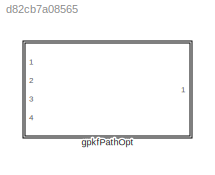
MODEL slx_d82cb7a08565
KIND library
CONFIG AbsTol = auto
CONFIG EnableMultiTasking = off
CONFIG FixedStep = auto
CONFIG MaxStep = auto
CONFIG MinStep = auto
CONFIG RelTol = 1e-3
CONFIG SampleTimeConstraint = Unconstrained
CONFIG SolverName = VariableStepAuto
CONFIG StartTime = 0.0
CONFIG StopTime = 10.0
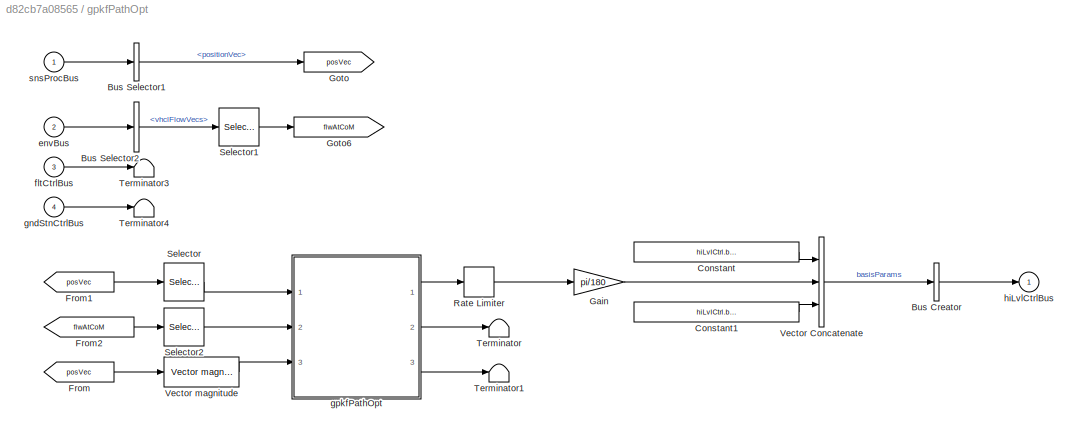
BLOCK [SubSystem] gpkfPathOpt
  InitFcn = initializeBussesFromBlock(gcb)
  LoadFcn = initializeBussesFromBlock(gcb)
  Ports = [4, 1]
  RequestExecContextInheritance = off
  StartFcn = initializeBussesFromBlock(gcb)
BLOCK [BusCreator] gpkfPathOpt/Bus Creator
  DisplayOption = bar
  InheritFromInputs = on
  Inputs = 1
  OutDataTypeStr = Bus: hiLvlCtrlBus
  Ports = [1, 1]
BLOCK [BusSelector] gpkfPathOpt/Bus Selector1
  OutputSignals = positionVec
  Ports = [1, 1]
BLOCK [BusSelector] gpkfPathOpt/Bus Selector2
  OutputSignals = vhclFlowVecs
  Ports = [1, 1]
BLOCK [Constant] gpkfPathOpt/Constant
  Value = hiLvlCtrl.basisParams.Value(1:2)
BLOCK [Constant] gpkfPathOpt/Constant1
  Value = hiLvlCtrl.basisParams.Value(4:5)
BLOCK [From] gpkfPathOpt/From
  GotoTag = posVec
BLOCK [From] gpkfPathOpt/From1
  GotoTag = posVec
BLOCK [From] gpkfPathOpt/From2
  GotoTag = flwAtCoM
BLOCK [Gain] gpkfPathOpt/Gain
  Gain = pi/180
BLOCK [Goto] gpkfPathOpt/Goto
  GotoTag = posVec
BLOCK [Goto] gpkfPathOpt/Goto6
  GotoTag = flwAtCoM
BLOCK [RateLimiter] gpkfPathOpt/Rate Limiter
  FallingSlewLimit = -hiLvlCtrl.rateLimit
  RisingSlewLimit = hiLvlCtrl.rateLimit
  SampleTimeMode = inherited
BLOCK [Selector] gpkfPathOpt/Selector
  IndexOptions = Index vector (dialog),Index vector (dialog)
  Indices = 3,1
  InputPortWidth = 3
  NumberOfDimensions = 2
  OutputSizes = 1,1
  Ports = [1, 1]
BLOCK [Selector] gpkfPathOpt/Selector1
  IndexOptions = Select all,Index vector (dialog)
  Indices = [1 3],5
  InputPortWidth = 3
  NumberOfDimensions = 2
  OutputSizes = 1,1
  Ports = [1, 1]
BLOCK [Selector] gpkfPathOpt/Selector2
  IndexOptions = Index vector (dialog),Index vector (dialog)
  Indices = 1,1
  InputPortWidth = 3
  NumberOfDimensions = 2
  OutputSizes = 1,1
  Ports = [1, 1]
BLOCK [Terminator] gpkfPathOpt/Terminator
BLOCK [Terminator] gpkfPathOpt/Terminator1
BLOCK [Terminator] gpkfPathOpt/Terminator3
BLOCK [Terminator] gpkfPathOpt/Terminator4
BLOCK [Concatenate] gpkfPathOpt/Vector Concatenate
  NumInputs = 3
  Ports = [3, 1]
BLOCK [Reference] gpkfPathOpt/Vector magnitude  REF=calculate_vector_magnitude/Vector magnitude  (lib defined in slx_4d1e83c0815f)
  Ports = [1, 1]
  SourceBlock = calculate_vector_magnitude/Vector magnitude
BLOCK [Inport] gpkfPathOpt/envBus
  Port = 2
BLOCK [Inport] gpkfPathOpt/fltCtrlBus
  Port = 3
BLOCK [Inport] gpkfPathOpt/gndStnCtrlBus
  Port = 4
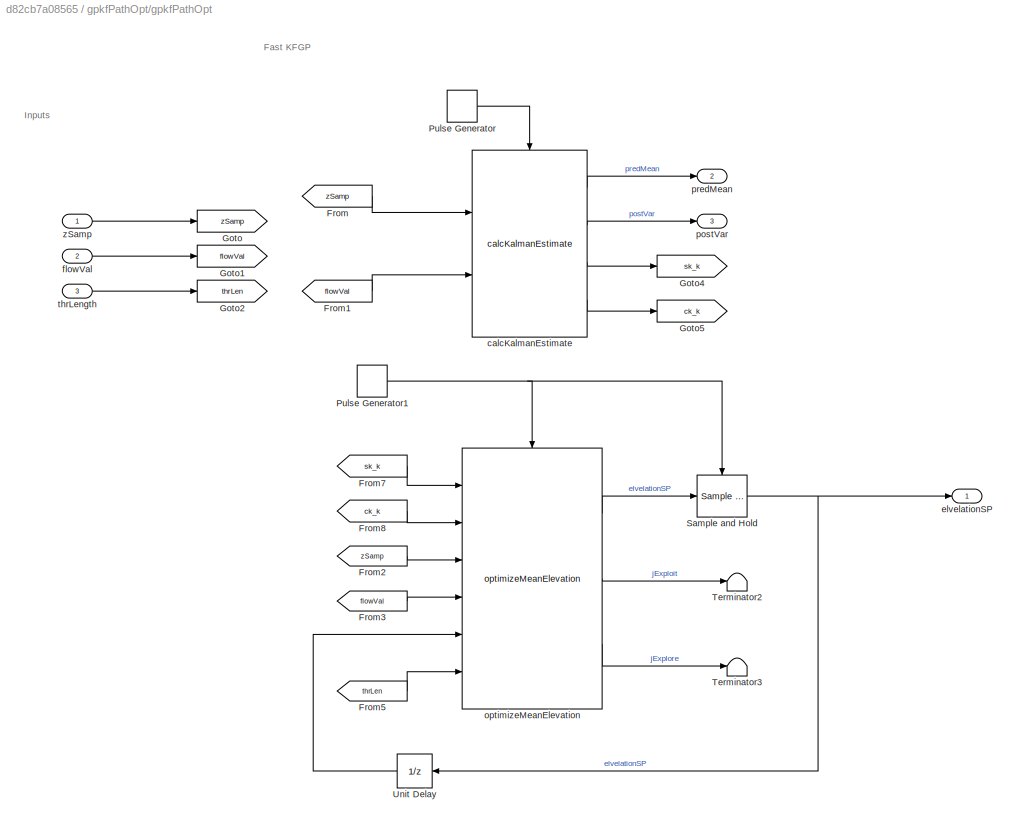
BLOCK [SubSystem] gpkfPathOpt/gpkfPathOpt
  Ports = [3, 3]
  RequestExecContextInheritance = off
BLOCK [From] gpkfPathOpt/gpkfPathOpt/From
  GotoTag = zSamp
BLOCK [From] gpkfPathOpt/gpkfPathOpt/From1
  GotoTag = flowVal
BLOCK [From] gpkfPathOpt/gpkfPathOpt/From2
  GotoTag = zSamp
BLOCK [From] gpkfPathOpt/gpkfPathOpt/From3
  GotoTag = flowVal
BLOCK [From] gpkfPathOpt/gpkfPathOpt/From5
  GotoTag = thrLen
BLOCK [From] gpkfPathOpt/gpkfPathOpt/From7
  GotoTag = sk_k
BLOCK [From] gpkfPathOpt/gpkfPathOpt/From8
  GotoTag = ck_k
BLOCK [Goto] gpkfPathOpt/gpkfPathOpt/Goto
  GotoTag = zSamp
BLOCK [Goto] gpkfPathOpt/gpkfPathOpt/Goto1
  GotoTag = flowVal
BLOCK [Goto] gpkfPathOpt/gpkfPathOpt/Goto2
  GotoTag = thrLen
BLOCK [Goto] gpkfPathOpt/gpkfPathOpt/Goto4
  GotoTag = sk_k
BLOCK [Goto] gpkfPathOpt/gpkfPathOpt/Goto5
  GotoTag = ck_k
BLOCK [DiscretePulseGenerator] gpkfPathOpt/gpkfPathOpt/Pulse Generator
  Period = hiLvlCtrl.kfgpTimeStep*60
  Ports = [0, 1]
  PulseType = Time based
BLOCK [DiscretePulseGenerator] gpkfPathOpt/gpkfPathOpt/Pulse Generator1
  Period = hiLvlCtrl.mpckfgpTimeStep*60
  PhaseDelay = hiLvlCtrl.mpckfgpTimeStep*60
  Ports = [0, 1]
  PulseType = Time based
BLOCK [Reference] gpkfPathOpt/gpkfPathOpt/Sample and Hold  REF=dspsigops/Sample
and Hold
  Ports = [1, 1, 0, 1]
  SourceBlock = dspsigops/Sample\nand Hold
  SourceProductBaseCode = DS
  SourceType = Sample and Hold
BLOCK [Terminator] gpkfPathOpt/gpkfPathOpt/Terminator2
BLOCK [Terminator] gpkfPathOpt/gpkfPathOpt/Terminator3
BLOCK [UnitDelay] gpkfPathOpt/gpkfPathOpt/Unit Delay
  HasFrameUpgradeWarning = on
  InitialCondition = hiLvlCtrl.initVals
  NameLocation = top
  SampleTime = -1
BLOCK [Reference] gpkfPathOpt/gpkfPathOpt/calcKalmanEstimate  REF=calcKalmanEstimate_ul/calcKalmanEstimate
  Ports = [2, 4, 0, 1]
  SourceBlock = calcKalmanEstimate_ul/calcKalmanEstimate
BLOCK [Outport] gpkfPathOpt/gpkfPathOpt/elvelationSP
BLOCK [Inport] gpkfPathOpt/gpkfPathOpt/flowVal
  Port = 2
BLOCK [Reference] gpkfPathOpt/gpkfPathOpt/optimizeMeanElevation  REF=optimizeTrajectory_ul/optimizeMeanElevation
  Ports = [6, 3, 0, 1]
  SourceBlock = optimizeTrajectory_ul/optimizeMeanElevation
BLOCK [Outport] gpkfPathOpt/gpkfPathOpt/postVar
  Port = 3
BLOCK [Outport] gpkfPathOpt/gpkfPathOpt/predMean
  Port = 2
BLOCK [Inport] gpkfPathOpt/gpkfPathOpt/thrLength
  Port = 3
BLOCK [Inport] gpkfPathOpt/gpkfPathOpt/zSamp
BLOCK [Outport] gpkfPathOpt/hiLvlCtrlBus
BLOCK [Inport] gpkfPathOpt/snsProcBus
ANNOTATION gpkfPathOpt/gpkfPathOpt: Fast KFGP
ANNOTATION gpkfPathOpt/gpkfPathOpt: Inputs
LINE gpkfPathOpt/Bus Creator:1 -> gpkfPathOpt/hiLvlCtrlBus:1
LINE gpkfPathOpt/Bus Selector1:1 -> gpkfPathOpt/Goto:1
LINE gpkfPathOpt/Bus Selector2:1 -> gpkfPathOpt/Selector1:1
LINE gpkfPathOpt/Constant1:1 -> gpkfPathOpt/Vector Concatenate:3
LINE gpkfPathOpt/Constant:1 -> gpkfPathOpt/Vector Concatenate:1
LINE gpkfPathOpt/From1:1 -> gpkfPathOpt/Selector:1
LINE gpkfPathOpt/From2:1 -> gpkfPathOpt/Selector2:1
LINE gpkfPathOpt/From:1 -> gpkfPathOpt/Vector magnitude:1
LINE gpkfPathOpt/Gain:1 -> gpkfPathOpt/Vector Concatenate:2
LINE gpkfPathOpt/Rate Limiter:1 -> gpkfPathOpt/Gain:1
LINE gpkfPathOpt/Selector1:1 -> gpkfPathOpt/Goto6:1
LINE gpkfPathOpt/Selector2:1 -> gpkfPathOpt/gpkfPathOpt:2
LINE gpkfPathOpt/Selector:1 -> gpkfPathOpt/gpkfPathOpt:1
LINE gpkfPathOpt/Vector Concatenate:1 -> gpkfPathOpt/Bus Creator:1
LINE gpkfPathOpt/Vector magnitude:1 -> gpkfPathOpt/gpkfPathOpt:3
LINE gpkfPathOpt/envBus:1 -> gpkfPathOpt/Bus Selector2:1
LINE gpkfPathOpt/fltCtrlBus:1 -> gpkfPathOpt/Terminator3:1
LINE gpkfPathOpt/gndStnCtrlBus:1 -> gpkfPathOpt/Terminator4:1
LINE gpkfPathOpt/gpkfPathOpt/From1:1 -> gpkfPathOpt/gpkfPathOpt/calcKalmanEstimate:2
LINE gpkfPathOpt/gpkfPathOpt/From2:1 -> gpkfPathOpt/gpkfPathOpt/optimizeMeanElevation:3
LINE gpkfPathOpt/gpkfPathOpt/From3:1 -> gpkfPathOpt/gpkfPathOpt/optimizeMeanElevation:4
LINE gpkfPathOpt/gpkfPathOpt/From5:1 -> gpkfPathOpt/gpkfPathOpt/optimizeMeanElevation:6
LINE gpkfPathOpt/gpkfPathOpt/From7:1 -> gpkfPathOpt/gpkfPathOpt/optimizeMeanElevation:1
LINE gpkfPathOpt/gpkfPathOpt/From8:1 -> gpkfPathOpt/gpkfPathOpt/optimizeMeanElevation:2
LINE gpkfPathOpt/gpkfPathOpt/From:1 -> gpkfPathOpt/gpkfPathOpt/calcKalmanEstimate:1
NET gpkfPathOpt/gpkfPathOpt/Pulse Generator1:1 -> gpkfPathOpt/gpkfPathOpt/Sample and Hold:trigger, gpkfPathOpt/gpkfPathOpt/optimizeMeanElevation:trigger
LINE gpkfPathOpt/gpkfPathOpt/Pulse Generator:1 -> gpkfPathOpt/gpkfPathOpt/calcKalmanEstimate:trigger
NET gpkfPathOpt/gpkfPathOpt/Sample and Hold:1 -> gpkfPathOpt/gpkfPathOpt/Unit Delay:1, gpkfPathOpt/gpkfPathOpt/elvelationSP:1
LINE gpkfPathOpt/gpkfPathOpt/Unit Delay:1 -> gpkfPathOpt/gpkfPathOpt/optimizeMeanElevation:5
LINE gpkfPathOpt/gpkfPathOpt/calcKalmanEstimate:1 -> gpkfPathOpt/gpkfPathOpt/predMean:1
LINE gpkfPathOpt/gpkfPathOpt/calcKalmanEstimate:2 -> gpkfPathOpt/gpkfPathOpt/postVar:1
LINE gpkfPathOpt/gpkfPathOpt/calcKalmanEstimate:3 -> gpkfPathOpt/gpkfPathOpt/Goto4:1
LINE gpkfPathOpt/gpkfPathOpt/calcKalmanEstimate:4 -> gpkfPathOpt/gpkfPathOpt/Goto5:1
LINE gpkfPathOpt/gpkfPathOpt/flowVal:1 -> gpkfPathOpt/gpkfPathOpt/Goto1:1
LINE gpkfPathOpt/gpkfPathOpt/optimizeMeanElevation:1 -> gpkfPathOpt/gpkfPathOpt/Sample and Hold:1
LINE gpkfPathOpt/gpkfPathOpt/optimizeMeanElevation:2 -> gpkfPathOpt/gpkfPathOpt/Terminator2:1
LINE gpkfPathOpt/gpkfPathOpt/optimizeMeanElevation:3 -> gpkfPathOpt/gpkfPathOpt/Terminator3:1
LINE gpkfPathOpt/gpkfPathOpt/thrLength:1 -> gpkfPathOpt/gpkfPathOpt/Goto2:1
LINE gpkfPathOpt/gpkfPathOpt/zSamp:1 -> gpkfPathOpt/gpkfPathOpt/Goto:1
LINE gpkfPathOpt/gpkfPathOpt:1 -> gpkfPathOpt/Rate Limiter:1
LINE gpkfPathOpt/gpkfPathOpt:2 -> gpkfPathOpt/Terminator:1
LINE gpkfPathOpt/gpkfPathOpt:3 -> gpkfPathOpt/Terminator1:1
LINE gpkfPathOpt/snsProcBus:1 -> gpkfPathOpt/Bus Selector1:1
note: NET lines group one-source signal fan-out (src -> all destinations, sorted); 1:1 wires keep LINE
